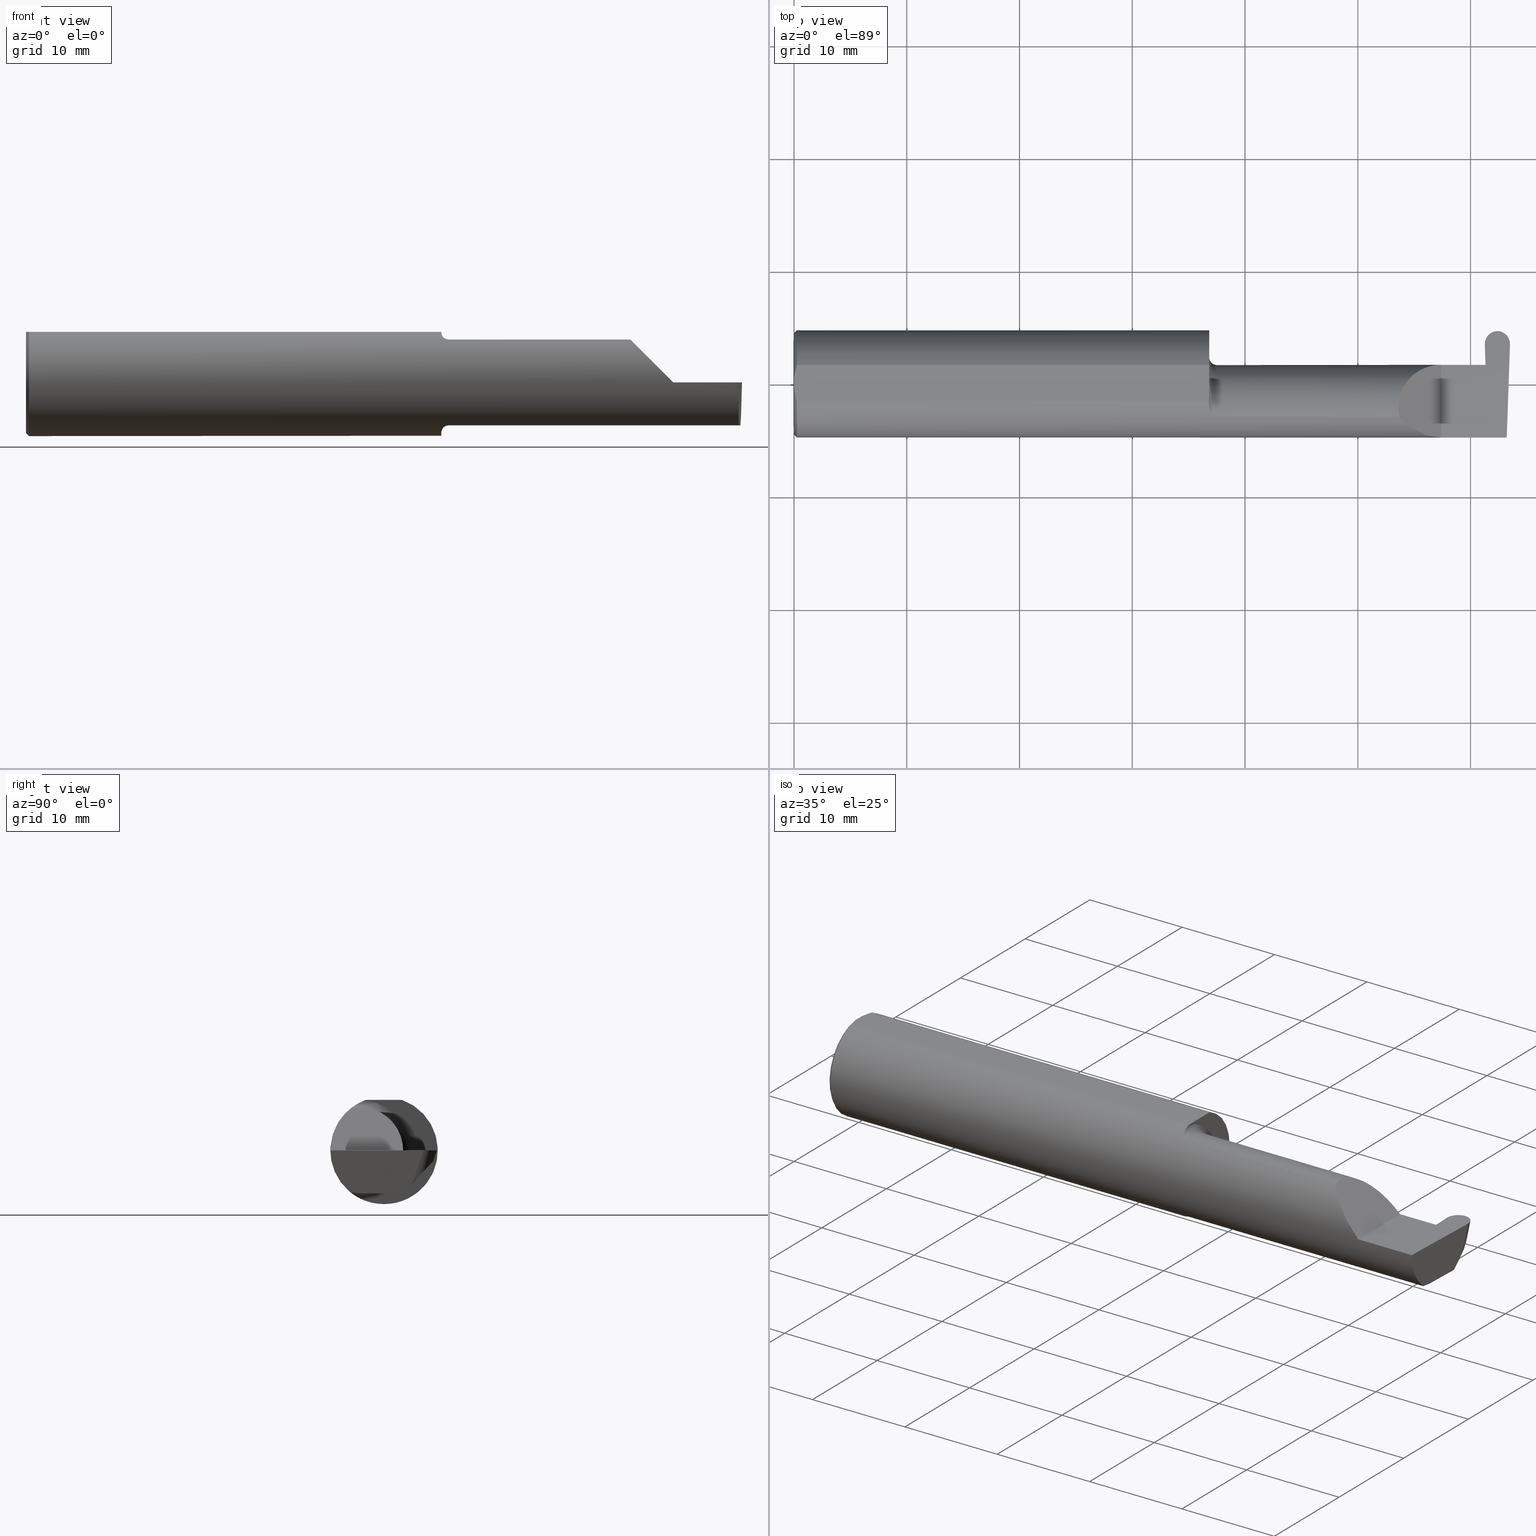
[diagram: canonical four-view strip — front | top / right | iso, engineering-drawing reading convention]
A machine part, canonical four-view strip (front | top / right | iso — engineering-drawing reading convention). The complete STEP part file that produces these views, byte-faithful:
ISO-10303-21;
HEADER;
FILE_DESCRIPTION (( 'STEP AP203' ),
    '1' );
FILE_NAME ('222182-GFR087-16.STEP',
    '2024-06-28T18:12:43',
    ( '' ),
    ( '' ),
    'SwSTEP 2.0',
    'SolidWorks 2024',
    '' );
FILE_SCHEMA (( 'CONFIG_CONTROL_DESIGN' ));
ENDSEC;

DATA;
#1 = ORIENTED_EDGE ( 'NONE', *, *, #475, .T. ) ;
#2 = LINE ( 'NONE', #388, #511 ) ;
#3 = DIRECTION ( 'NONE',  ( -0.0003154085283454300553, 0.9999999502587288980, 0.000000000000000000 ) ) ;
#4 = EDGE_LOOP ( 'NONE', ( #440, #13, #368, #558 ) ) ;
#5 = CC_DESIGN_PERSON_AND_ORGANIZATION_ASSIGNMENT ( #30, #674, ( #83 ) ) ;
#6 = DIRECTION ( 'NONE',  ( 0.02739170151060012909, -0.3089010440752013031, -0.9506996579664919178 ) ) ;
#7 = ORIENTED_EDGE ( 'NONE', *, *, #657, .T. ) ;
#8 =( CONVERSION_BASED_UNIT ( 'INCH', #218 ) LENGTH_UNIT ( ) NAMED_UNIT ( #634 ) );
#9 = CARTESIAN_POINT ( 'NONE',  ( 2.496782013450319582, 0.1018667288808076804, -0.1084363226623426962 ) ) ;
#10 = VERTEX_POINT ( 'NONE', #173 ) ;
#11 = LINE ( 'NONE', #448, #151 ) ;
#12 = CARTESIAN_POINT ( 'NONE',  ( 1.450000000000000178, 0.06655862405286426531, -0.005234924505377316559 ) ) ;
#13 = ORIENTED_EDGE ( 'NONE', *, *, #224, .T. ) ;
#14 = EDGE_CURVE ( 'NONE', #399, #669, #18, .T. ) ;
#15 = PERSON_AND_ORGANIZATION_ROLE ( 'classification_officer' ) ;
#16 = DIRECTION ( 'NONE',  ( -0.03489949670249319069, -0.9993908270190959842, 0.000000000000000000 ) ) ;
#17 = ORIENTED_EDGE ( 'NONE', *, *, #506, .T. ) ;
#18 = CIRCLE ( 'NONE', #29, 0.1873499999999999888 ) ;
#19 = AXIS2_PLACEMENT_3D ( 'NONE', #560, #571, #238 ) ;
#20 = PERSON_AND_ORGANIZATION_ROLE ( 'design_owner' ) ;
#21 = CYLINDRICAL_SURFACE ( 'NONE', #303, 0.04399999999999999745 ) ;
#22 = EDGE_LOOP ( 'NONE', ( #278, #291, #418, #212, #222 ) ) ;
#23 = DATE_AND_TIME ( #627, #593 ) ;
#24 = VERTEX_POINT ( 'NONE', #350 ) ;
#25 = ADVANCED_FACE ( 'NONE', ( #404 ), #676, .T. ) ;
#26 = DATE_AND_TIME ( #353, #163 ) ;
#27 =( BOUNDED_CURVE ( )  B_SPLINE_CURVE ( 3, ( #619, #63, #66, #394 ),
 .UNSPECIFIED., .F., .T. ) 
 B_SPLINE_CURVE_WITH_KNOTS ( ( 4, 4 ),
 ( 4.712388980384693227, 4.728033103810992621 ),
 .UNSPECIFIED. ) 
 CURVE ( )  GEOMETRIC_REPRESENTATION_ITEM ( )  RATIONAL_B_SPLINE_CURVE ( ( 1.000000000000000000, 0.9999796052208393959, 0.9999796052208393959, 1.000000000000000000 ) ) 
 REPRESENTATION_ITEM ( '' )  );
#28 = CARTESIAN_POINT ( 'NONE',  ( 1.450000000000000178, 0.1873499999999997390, 0.1763499999999999235 ) ) ;
#29 = AXIS2_PLACEMENT_3D ( 'NONE', #682, #509, #572 ) ;
#30 = PERSON_AND_ORGANIZATION ( #406, #551 ) ;
#31 = VECTOR ( 'NONE', #265, 39.37007874015747433 ) ;
#32 = CARTESIAN_POINT ( 'NONE',  ( 1.465028532764138358, -0.1137241120808235306, -0.1488947809299403791 ) ) ;
#33 = ORIENTED_EDGE ( 'NONE', *, *, #652, .T. ) ;
#34 = DIRECTION ( 'NONE',  ( 1.000000000000000000, 7.100831337523756508E-17, 0.000000000000000000 ) ) ;
#35 = CARTESIAN_POINT ( 'NONE',  ( 2.415023676549680420, 0.1018667288808076665, -0.1084363226623427101 ) ) ;
#36 = EDGE_CURVE ( 'NONE', #399, #284, #626, .T. ) ;
#37 = CARTESIAN_POINT ( 'NONE',  ( 2.455902844999999779, 0.1800649307963945456, -0.01411139200474581350 ) ) ;
#38 = ORIENTED_EDGE ( 'NONE', *, *, #447, .T. ) ;
#39 = FACE_OUTER_BOUND ( 'NONE', #541, .T. ) ;
#40 = CARTESIAN_POINT ( 'NONE',  ( 2.414454177608814867, 0.06655862405286415429, -0.005234924505383332580 ) ) ;
#41 = ORIENTED_EDGE ( 'NONE', *, *, #632, .T. ) ;
#42 = DIRECTION ( 'NONE',  ( -1.000000000000000000, -7.100831337523756508E-17, -0.000000000000000000 ) ) ;
#43 = DIRECTION ( 'NONE',  ( -0.7071067811865441310, 0.000000000000000000, -0.7071067811865510144 ) ) ;
#44 = ORIENTED_EDGE ( 'NONE', *, *, #578, .F. ) ;
#45 = CARTESIAN_POINT ( 'NONE',  ( 2.456309424548497322, 0.1846500000000000363, 0.000000000000000000 ) ) ;
#46 = B_SPLINE_CURVE_WITH_KNOTS ( 'NONE', 3,
 ( #231, #69, #283, #116 ),
 .UNSPECIFIED., .F., .F.,
 ( 4, 4 ),
 ( 0.000000000000000000, 1.000000000000000000 ),
 .UNSPECIFIED. ) ;
#47 = DIRECTION ( 'NONE',  ( 0.000000000000000000, 0.000000000000000000, -1.000000000000000000 ) ) ;
#48 = ADVANCED_FACE ( 'NONE', ( #395 ), #621, .F. ) ;
#49 = VERTEX_POINT ( 'NONE', #81 ) ;
#50 = DIRECTION ( 'NONE',  ( -1.000000000000000000, -0.000000000000000000, -0.000000000000000000 ) ) ;
#51 = CARTESIAN_POINT ( 'NONE',  ( 1.456287624083520083, -0.1021858045380145130, 0.1571187174372875028 ) ) ;
#52 = VERTEX_POINT ( 'NONE', #517 ) ;
#53 = VECTOR ( 'NONE', #317, 39.37007874015748143 ) ;
#54 = DIRECTION ( 'NONE',  ( 0.9992386149554828290, 0.03489418134010670303, 0.01745240643728358798 ) ) ;
#55 = EDGE_CURVE ( 'NONE', #284, #612, #645, .T. ) ;
#56 = CARTESIAN_POINT ( 'NONE',  ( 0.000000000000000000, 0.000000000000000000, 0.000000000000000000 ) ) ;
#57 = ORIENTED_EDGE ( 'NONE', *, *, #200, .F. ) ;
#58 = CARTESIAN_POINT ( 'NONE',  ( 0.01000000000000013205, 0.000000000000000000, -0.1873499999999999888 ) ) ;
#59 = EDGE_CURVE ( 'NONE', #579, #233, #453, .T. ) ;
#60 = PLANE ( 'NONE',  #454 ) ;
#61 = ORIENTED_EDGE ( 'NONE', *, *, #242, .F. ) ;
#62 = AXIS2_PLACEMENT_3D ( 'NONE', #346, #344, #563 ) ;
#63 = CARTESIAN_POINT ( 'NONE',  ( 2.455902844999999779, 0.1774764172755823044, -0.02207801745350519013 ) ) ;
#64 = ORIENTED_EDGE ( 'NONE', *, *, #95, .F. ) ;
#65 = CARTESIAN_POINT ( 'NONE',  ( 2.202189699843948301, -0.1873500000000000443, 0.05781030015605120170 ) ) ;
#66 = CARTESIAN_POINT ( 'NONE',  ( 2.455902844999999779, 0.1748862760345988587, -0.03004384457775134687 ) ) ;
#67 = ADVANCED_FACE ( 'NONE', ( #364 ), #420, .F. ) ;
#68 = DIRECTION ( 'NONE',  ( -7.100831337523756508E-17, 1.000000000000000000, 0.000000000000000000 ) ) ;
#69 = CARTESIAN_POINT ( 'NONE',  ( 2.405177986947488300, 0.06658908270190941336, -0.003489949670254619170 ) ) ;
#70 = AXIS2_PLACEMENT_3D ( 'NONE', #615, #54, #438 ) ;
#71 = LINE ( 'NONE', #345, #124 ) ;
#72 = VERTEX_POINT ( 'NONE', #90 ) ;
#73 = EDGE_CURVE ( 'NONE', #274, #264, #305, .T. ) ;
#74 = MECHANICAL_CONTEXT ( 'NONE', #185, 'mechanical' ) ;
#75 = DIRECTION ( 'NONE',  ( 0.000000000000000000, 1.000000000000000000, 0.000000000000000000 ) ) ;
#76 = VERTEX_POINT ( 'NONE', #257 ) ;
#77 = CONICAL_SURFACE ( 'NONE', #214, 0.1773499999999999521, 0.7853981633974431720 ) ;
#78 = APPROVAL_DATE_TIME ( #133, #270 ) ;
#79 = CARTESIAN_POINT ( 'NONE',  ( 0.005151108632379722968, -0.04888864921576022843, 0.1763499999999999235 ) ) ;
#80 = ADVANCED_FACE ( 'NONE', ( #465 ), #355, .F. ) ;
#81 = CARTESIAN_POINT ( 'NONE',  ( 1.450000000000000178, -0.06851976604679066440, 0.1743704796142198643 ) ) ;
#82 = PERSON_AND_ORGANIZATION ( #406, #551 ) ;
#83 = PRODUCT_DEFINITION_FORMATION_WITH_SPECIFIED_SOURCE ( 'ANY', '', #658, .NOT_KNOWN. ) ;
#84 = VERTEX_POINT ( 'NONE', #480 ) ;
#85 = APPROVAL_DATE_TIME ( #26, #700 ) ;
#86 = CARTESIAN_POINT ( 'NONE',  ( 2.417090374579074830, 0.002105059811797808066, -0.1500000000000000500 ) ) ;
#87 = EDGE_LOOP ( 'NONE', ( #502, #206, #568, #114 ) ) ;
#88 = VECTOR ( 'NONE', #229, 39.37007874015748854 ) ;
#89 = VECTOR ( 'NONE', #369, 39.37007874015748143 ) ;
#90 = CARTESIAN_POINT ( 'NONE',  ( 0.000000000000000000, -0.01880691362238934641, 0.1763499999999999235 ) ) ;
#91 = ORIENTED_EDGE ( 'NONE', *, *, #452, .T. ) ;
#92 = DIRECTION ( 'NONE',  ( -1.000000000000000000, -0.000000000000000000, -0.000000000000000000 ) ) ;
#93 = DIRECTION ( 'NONE',  ( -0.9992386149554828290, 0.03489418134010589118, 0.01745240643728358451 ) ) ;
#94 = AXIS2_PLACEMENT_3D ( 'NONE', #559, #500, #377 ) ;
#95 = EDGE_CURVE ( 'NONE', #10, #481, #312, .T. ) ;
#96 = ORIENTED_EDGE ( 'NONE', *, *, #506, .F. ) ;
#97 = CYLINDRICAL_SURFACE ( 'NONE', #426, 0.1500000000000000500 ) ;
#98 =( BOUNDED_CURVE ( )  B_SPLINE_CURVE ( 3, ( #697, #149, #485, #479 ),
 .UNSPECIFIED., .F., .T. ) 
 B_SPLINE_CURVE_WITH_KNOTS ( ( 4, 4 ),
 ( 1.556955361882043087, 3.139904393074466338 ),
 .UNSPECIFIED. ) 
 CURVE ( )  GEOMETRIC_REPRESENTATION_ITEM ( )  RATIONAL_B_SPLINE_CURVE ( ( 1.000000000000000000, 0.8018647492693374845, 0.8018647492693374845, 1.000000000000000000 ) ) 
 REPRESENTATION_ITEM ( '' )  );
#99 = CARTESIAN_POINT ( 'NONE',  ( 2.417117327835069940, -0.08334999999999997966, -0.1500000000000000500 ) ) ;
#100 = VERTEX_POINT ( 'NONE', #309 ) ;
#101 = CARTESIAN_POINT ( 'NONE',  ( 2.482665624698748186, 0.1846499999999999808, 5.261345637967953601E-18 ) ) ;
#102 = CARTESIAN_POINT ( 'NONE',  ( 1.450000000000000178, -0.06851976604679066440, 0.1743704796142198643 ) ) ;
#103 = EDGE_LOOP ( 'NONE', ( #281, #330, #574, #376, #427, #358 ) ) ;
#104 = LINE ( 'NONE', #321, #359 ) ;
#105 = CARTESIAN_POINT ( 'NONE',  ( 2.487566561880238947, -0.1873499999999999610, -0.05781030015605118089 ) ) ;
#106 = ORIENTED_EDGE ( 'NONE', *, *, #684, .F. ) ;
#107 = LOCAL_TIME ( 11, 12, 43.00000000000000000, #463 ) ;
#108 = LINE ( 'NONE', #580, #356 ) ;
#109 = CARTESIAN_POINT ( 'NONE',  ( 2.499906297085412898, 0.1370998259008695819, 0.000000000000000000 ) ) ;
#110 = ORIENTED_EDGE ( 'NONE', *, *, #308, .F. ) ;
#111 = CIRCLE ( 'NONE', #393, 0.1873499999999999888 ) ;
#112 = EDGE_CURVE ( 'NONE', #244, #72, #533, .T. ) ;
#113 = CARTESIAN_POINT ( 'NONE',  ( 1.451829077486400443, -0.08839624499054650475, 0.1652742498708037744 ) ) ;
#114 = ORIENTED_EDGE ( 'NONE', *, *, #691, .T. ) ;
#115 = EDGE_CURVE ( 'NONE', #306, #264, #221, .T. ) ;
#116 = CARTESIAN_POINT ( 'NONE',  ( 2.405238904245578624, 0.06664999999999991764, 0.000000000000000000 ) ) ;
#117 = FACE_OUTER_BOUND ( 'NONE', #642, .T. ) ;
#118 = ORIENTED_EDGE ( 'NONE', *, *, #302, .F. ) ;
#119 = LINE ( 'NONE', #381, #203 ) ;
#120 = CARTESIAN_POINT ( 'NONE',  ( 2.408028112623431749, 0.2354043271331361931, 0.02510127558998736727 ) ) ;
#121 = VERTEX_POINT ( 'NONE', #143 ) ;
#122 = VECTOR ( 'NONE', #140, 39.37007874015748854 ) ;
#123 = PLANE ( 'NONE',  #690 ) ;
#124 = VECTOR ( 'NONE', #134, 39.37007874015748854 ) ;
#125 = ORIENTED_EDGE ( 'NONE', *, *, #594, .T. ) ;
#126 = DIRECTION ( 'NONE',  ( -0.01299916717458333461, 0.7070470357949164564, 0.7070470357949245610 ) ) ;
#127 = EDGE_CURVE ( 'NONE', #72, #24, #692, .T. ) ;
#128 = PLANE ( 'NONE',  #413 ) ;
#129 = ORIENTED_EDGE ( 'NONE', *, *, #569, .F. ) ;
#130 = CALENDAR_DATE ( 2024, 28, 6 ) ;
#131 = CARTESIAN_POINT ( 'NONE',  ( 2.733184360054361939, -0.08334999999999997966, -0.1500000000000000500 ) ) ;
#132 = VERTEX_POINT ( 'NONE', #685 ) ;
#133 = DATE_AND_TIME ( #400, #434 ) ;
#134 = DIRECTION ( 'NONE',  ( -0.02739170151060013256, 0.3089010440752013587, 0.9506996579664918068 ) ) ;
#135 = VERTEX_POINT ( 'NONE', #630 ) ;
#136 = CC_DESIGN_PERSON_AND_ORGANIZATION_ASSIGNMENT ( #625, #451, ( #83 ) ) ;
#137 = DATE_TIME_ROLE ( 'classification_date' ) ;
#138 = ORIENTED_EDGE ( 'NONE', *, *, #452, .F. ) ;
#139 = COORDINATED_UNIVERSAL_TIME_OFFSET ( 8, 0, .BEHIND. ) ;
#140 = DIRECTION ( 'NONE',  ( 0.02739170151059986541, 0.3089010440752013031, 0.9506996579664918068 ) ) ;
#141 = ORIENTED_EDGE ( 'NONE', *, *, #423, .F. ) ;
#142 = EDGE_CURVE ( 'NONE', #436, #260, #301, .T. ) ;
#143 = CARTESIAN_POINT ( 'NONE',  ( 2.494604638945828956, 0.06030305154315079852, -0.1500000000000000500 ) ) ;
#144 = ORIENTED_EDGE ( 'NONE', *, *, #469, .F. ) ;
#145 = VECTOR ( 'NONE', #126, 39.37007874015748143 ) ;
#146 = CARTESIAN_POINT ( 'NONE',  ( 0.000000000000000000, 0.000000000000000000, 0.000000000000000000 ) ) ;
#147 = EDGE_CURVE ( 'NONE', #549, #546, #587, .T. ) ;
#148 = CARTESIAN_POINT ( 'NONE',  ( 0.01000000000000013205, 0.06325108694718235836, 0.1763499999999999235 ) ) ;
#149 = CARTESIAN_POINT ( 'NONE',  ( 2.412901126908979510, 0.1423838600483241235, -0.06791919149482579521 ) ) ;
#150 = DIRECTION ( 'NONE',  ( -7.100831337523756508E-17, 1.000000000000000000, 0.000000000000000000 ) ) ;
#151 = VECTOR ( 'NONE', #174, 39.37007874015748143 ) ;
#152 = ORIENTED_EDGE ( 'NONE', *, *, #691, .F. ) ;
#153 = DIRECTION ( 'NONE',  ( -1.000000000000000000, -0.000000000000000000, -0.000000000000000000 ) ) ;
#154 = CARTESIAN_POINT ( 'NONE',  ( 1.458439486659307338, -0.1064616213911158266, -0.1542305641651500470 ) ) ;
#155 = ORIENTED_EDGE ( 'NONE', *, *, #59, .F. ) ;
#156 = AXIS2_PLACEMENT_3D ( 'NONE', #146, #153, #365 ) ;
#157 = CARTESIAN_POINT ( 'NONE',  ( 2.411832552795360574, 0.1390138764844879860, 0.000000000000000000 ) ) ;
#158 = CARTESIAN_POINT ( 'NONE',  ( 2.414359555045604289, 0.06664999999999991764, 0.000000000000000000 ) ) ;
#159 = ORIENTED_EDGE ( 'NONE', *, *, #567, .T. ) ;
#160 = CARTESIAN_POINT ( 'NONE',  ( 0.000000000000000000, 0.000000000000000000, -0.1773499999999999521 ) ) ;
#161 = CARTESIAN_POINT ( 'NONE',  ( 1.450000000000000178, -0.06325108694718287183, 0.1763499999999999235 ) ) ;
#162 = ORIENTED_EDGE ( 'NONE', *, *, #147, .F. ) ;
#163 = LOCAL_TIME ( 11, 12, 43.00000000000000000, #139 ) ;
#164 = APPROVAL ( #510, 'UNSPECIFIED' ) ;
#165 = CARTESIAN_POINT ( 'NONE',  ( 2.414359555045604289, 0.06664999999999991764, -9.645561665750322649E-21 ) ) ;
#166 = ORIENTED_EDGE ( 'NONE', *, *, #484, .T. ) ;
#167 = CARTESIAN_POINT ( 'NONE',  ( 2.414359555045604289, 0.06664999999999991764, 0.000000000000000000 ) ) ;
#168 = EDGE_LOOP ( 'NONE', ( #334, #635, #387, #608 ) ) ;
#169 = CARTESIAN_POINT ( 'NONE',  ( 1.450000000000000178, 0.000000000000000000, 0.000000000000000000 ) ) ;
#170 = EDGE_LOOP ( 'NONE', ( #496, #7, #247, #152, #64, #491, #129, #646, #166 ) ) ;
#171 = DIRECTION ( 'NONE',  ( 1.000000000000000000, 7.100831337523756508E-17, 0.000000000000000000 ) ) ;
#172 = CARTESIAN_POINT ( 'NONE',  ( 2.500000000000000000, -0.2500000000000000555, 0.000000000000000000 ) ) ;
#173 = CARTESIAN_POINT ( 'NONE',  ( 2.260000000000000231, 0.06665000000000002867, 1.285879139104721225E-16 ) ) ;
#174 = DIRECTION ( 'NONE',  ( 1.000000000000000000, -0.000000000000000000, -0.000000000000000000 ) ) ;
#175 = EDGE_CURVE ( 'NONE', #233, #76, #389, .T. ) ;
#176 = CIRCLE ( 'NONE', #613, 0.1873499999999999888 ) ;
#177 = CARTESIAN_POINT ( 'NONE',  ( 2.113883229301068312, -0.1172600179964003175, 0.1461167706989304760 ) ) ;
#178 = VECTOR ( 'NONE', #651, 39.37007874015748143 ) ;
#179 = DIRECTION ( 'NONE',  ( 1.000000000000000000, 0.000000000000000000, 0.000000000000000000 ) ) ;
#180 = AXIS2_PLACEMENT_3D ( 'NONE', #169, #648, #698 ) ;
#181 = COORDINATED_UNIVERSAL_TIME_OFFSET ( 8, 0, .BEHIND. ) ;
#182 = CARTESIAN_POINT ( 'NONE',  ( 2.417363697998881733, -2.354248658836814556, -0.1239957194858760936 ) ) ;
#183 = ORIENTED_EDGE ( 'NONE', *, *, #14, .T. ) ;
#184 = APPROVAL_STATUS ( 'not_yet_approved' ) ;
#185 = APPLICATION_CONTEXT ( 'configuration controlled 3d designs of mechanical parts and assemblies' ) ;
#186 = LOCAL_TIME ( 11, 12, 43.00000000000000000, #245 ) ;
#187 = DIRECTION ( 'NONE',  ( 0.000000000000000000, 0.000000000000000000, -1.000000000000000000 ) ) ;
#188 = ORIENTED_EDGE ( 'NONE', *, *, #112, .T. ) ;
#189 = DIRECTION ( 'NONE',  ( 0.000000000000000000, 0.000000000000000000, 1.000000000000000000 ) ) ;
#190 = AXIS2_PLACEMENT_3D ( 'NONE', #477, #407, #253 ) ;
#191 = DIRECTION ( 'NONE',  ( 1.000000000000000000, 7.100831337523756508E-17, 0.000000000000000000 ) ) ;
#192 =( BOUNDED_CURVE ( )  B_SPLINE_CURVE ( 3, ( #609, #550, #670, #285 ),
 .UNSPECIFIED., .F., .T. ) 
 B_SPLINE_CURVE_WITH_KNOTS ( ( 4, 4 ),
 ( 3.057488531086357764, 4.656081685705083295 ),
 .UNSPECIFIED. ) 
 CURVE ( )  GEOMETRIC_REPRESENTATION_ITEM ( )  RATIONAL_B_SPLINE_CURVE ( ( 1.000000000000000000, 0.7981407609938078185, 0.7981407609938078185, 1.000000000000000000 ) ) 
 REPRESENTATION_ITEM ( '' )  );
#193 = DIRECTION ( 'NONE',  ( -0.02739170151059987582, -0.3089010440752013587, -0.9506996579664918068 ) ) ;
#194 = VERTEX_POINT ( 'NONE', #35 ) ;
#195 = EDGE_CURVE ( 'NONE', #24, #591, #249, .T. ) ;
#196 =( BOUNDED_CURVE ( )  B_SPLINE_CURVE ( 3, ( #419, #215, #644, #262 ),
 .UNSPECIFIED., .F., .T. ) 
 B_SPLINE_CURVE_WITH_KNOTS ( ( 4, 4 ),
 ( 6.055147272130144920, 7.853981633974482790 ),
 .UNSPECIFIED. ) 
 CURVE ( )  GEOMETRIC_REPRESENTATION_ITEM ( )  RATIONAL_B_SPLINE_CURVE ( ( 1.000000000000000000, 0.7480442670255273985, 0.7480442670255273985, 1.000000000000000000 ) ) 
 REPRESENTATION_ITEM ( '' )  );
#197 =( GEOMETRIC_REPRESENTATION_CONTEXT ( 3 ) GLOBAL_UNCERTAINTY_ASSIGNED_CONTEXT ( ( #520 ) ) GLOBAL_UNIT_ASSIGNED_CONTEXT ( ( #8, #597, #433 ) ) REPRESENTATION_CONTEXT ( 'NONE', 'WORKASPACE' ) );
#198 = DIRECTION ( 'NONE',  ( -0.01806954526206909148, 0.01744955702544859211, 0.9996844524616943506 ) ) ;
#199 = DIRECTION ( 'NONE',  ( -1.000000000000000000, -7.100831337523756508E-17, -0.000000000000000000 ) ) ;
#200 = EDGE_CURVE ( 'NONE', #436, #121, #687, .T. ) ;
#201 = CARTESIAN_POINT ( 'NONE',  ( 0.000000000000000000, 0.01880691362238934988, 0.1763499999999999235 ) ) ;
#202 = AXIS2_PLACEMENT_3D ( 'NONE', #581, #93, #417 ) ;
#203 = VECTOR ( 'NONE', #604, 39.37007874015748143 ) ;
#204 = FACE_OUTER_BOUND ( 'NONE', #103, .T. ) ;
#205 = CARTESIAN_POINT ( 'NONE',  ( 1.474999999999999867, -0.1172600179964005951, -0.1461167706989303927 ) ) ;
#206 = ORIENTED_EDGE ( 'NONE', *, *, #415, .T. ) ;
#207 = CARTESIAN_POINT ( 'NONE',  ( 1.472174967710399462, -0.1172600179964005812, -0.1461167706989304205 ) ) ;
#208 = ORIENTED_EDGE ( 'NONE', *, *, #524, .F. ) ;
#209 = LINE ( 'NONE', #422, #602 ) ;
#210 = MANIFOLD_SOLID_BREP ( 'Radii', #702 ) ;
#211 = DIRECTION ( 'NONE',  ( 1.000000000000000000, 0.000000000000000000, 0.000000000000000000 ) ) ;
#212 = ORIENTED_EDGE ( 'NONE', *, *, #73, .T. ) ;
#213 = VECTOR ( 'NONE', #3, 39.37007874015748143 ) ;
#214 = AXIS2_PLACEMENT_3D ( 'NONE', #552, #599, #487 ) ;
#215 = CARTESIAN_POINT ( 'NONE',  ( 2.090221225029926355, -0.01530148607434139371, 0.1697787749700724880 ) ) ;
#216 = DIRECTION ( 'NONE',  ( 0.000000000000000000, -0.9998476951563912696, 0.01745240643728358451 ) ) ;
#217 = ORIENTED_EDGE ( 'NONE', *, *, #200, .T. ) ;
#218 = LENGTH_MEASURE_WITH_UNIT ( LENGTH_MEASURE( 0.02539999999999999897 ), #507 );
#219 = CC_DESIGN_PERSON_AND_ORGANIZATION_ASSIGNMENT ( #348, #20, ( #658 ) ) ;
#220 = CARTESIAN_POINT ( 'NONE',  ( 1.469481469043492083, -0.1163560528186164955, 0.1468472430636323933 ) ) ;
#221 =( BOUNDED_CURVE ( )  B_SPLINE_CURVE ( 3, ( #99, #86, #683, #40 ),
 .UNSPECIFIED., .F., .T. ) 
 B_SPLINE_CURVE_WITH_KNOTS ( ( 4, 4 ),
 ( 3.159045946109732217, 4.694935687864687957 ),
 .UNSPECIFIED. ) 
 CURVE ( )  GEOMETRIC_REPRESENTATION_ITEM ( )  RATIONAL_B_SPLINE_CURVE ( ( 1.000000000000000000, 0.8128932002257799327, 0.8128932002257799327, 1.000000000000000000 ) ) 
 REPRESENTATION_ITEM ( '' )  );
#222 = ORIENTED_EDGE ( 'NONE', *, *, #254, .T. ) ;
#223 = CC_DESIGN_APPROVAL ( #270, ( #246 ) ) ;
#224 = EDGE_CURVE ( 'NONE', #306, #100, #378, .T. ) ;
#225 = CARTESIAN_POINT ( 'NONE',  ( 2.455902844999999779, 0.1722946655495198598, -0.03800838599362971193 ) ) ;
#226 = EDGE_CURVE ( 'NONE', #84, #310, #561, .T. ) ;
#227 = CARTESIAN_POINT ( 'NONE',  ( 1.452945243422983035, -0.09312071749437422774, 0.1626553472577906556 ) ) ;
#228 = ORIENTED_EDGE ( 'NONE', *, *, #142, .F. ) ;
#229 = DIRECTION ( 'NONE',  ( -0.03701744261649742712, -0.7066221440565398915, -0.7066221440565478851 ) ) ;
#230 = ORIENTED_EDGE ( 'NONE', *, *, #73, .F. ) ;
#231 = CARTESIAN_POINT ( 'NONE',  ( 2.405147528298442694, 0.06655862405286416816, -0.005234924505381928321 ) ) ;
#232 = CARTESIAN_POINT ( 'NONE',  ( 2.499906297085412898, 0.1370998259008695819, 0.000000000000000000 ) ) ;
#233 = VERTEX_POINT ( 'NONE', #375 ) ;
#234 = LINE ( 'NONE', #327, #545 ) ;
#235 = FACE_OUTER_BOUND ( 'NONE', #4, .T. ) ;
#236 = EDGE_LOOP ( 'NONE', ( #555, #553, #41 ) ) ;
#237 = APPROVAL_ROLE ( '' ) ;
#238 = DIRECTION ( 'NONE',  ( 0.000000000000000000, 0.000000000000000000, 1.000000000000000000 ) ) ;
#239 = CIRCLE ( 'NONE', #476, 0.1749999999999999889 ) ;
#240 = VERTEX_POINT ( 'NONE', #158 ) ;
#241 = APPROVAL_DATE_TIME ( #23, #164 ) ;
#242 = EDGE_CURVE ( 'NONE', #669, #591, #176, .T. ) ;
#243 = LINE ( 'NONE', #120, #380 ) ;
#244 = VERTEX_POINT ( 'NONE', #540 ) ;
#245 = COORDINATED_UNIVERSAL_TIME_OFFSET ( 8, 0, .BEHIND. ) ;
#246 = SECURITY_CLASSIFICATION ( '', '', #248 ) ;
#247 = ORIENTED_EDGE ( 'NONE', *, *, #600, .F. ) ;
#248 = SECURITY_CLASSIFICATION_LEVEL ( 'unclassified' ) ;
#249 = B_SPLINE_CURVE_WITH_KNOTS ( 'NONE', 3,
 ( #201, #414, #639, #148 ),
 .UNSPECIFIED., .F., .F.,
 ( 4, 4 ),
 ( 0.01188664626022242071, 0.01304646959483746725 ),
 .UNSPECIFIED. ) ;
#250 = AXIS2_PLACEMENT_3D ( 'NONE', #661, #43, #383 ) ;
#251 = CARTESIAN_POINT ( 'NONE',  ( 2.499922542640338197, 0.1372830298860648612, 0.0005638438891804136138 ) ) ;
#252 = ADVANCED_FACE ( 'NONE', ( #495 ), #261, .T. ) ;
#253 = DIRECTION ( 'NONE',  ( 0.000000000000000000, 0.000000000000000000, -1.000000000000000000 ) ) ;
#254 = EDGE_CURVE ( 'NONE', #264, #240, #319, .T. ) ;
#255 = EDGE_LOOP ( 'NONE', ( #228, #617, #141, #162, #513 ) ) ;
#256 = DIRECTION ( 'NONE',  ( 0.9998367324388628408, 0.0003153570480505056822, 0.01806679318280295793 ) ) ;
#257 = CARTESIAN_POINT ( 'NONE',  ( 1.450000000000000178, -0.06851976604679066440, -0.1743704796142198643 ) ) ;
#258 = CARTESIAN_POINT ( 'NONE',  ( 2.456309424548497322, 0.1846500000000000363, 0.000000000000000000 ) ) ;
#259 = CARTESIAN_POINT ( 'NONE',  ( 1.474999999999999867, -0.08335000000000006293, 0.000000000000000000 ) ) ;
#260 = VERTEX_POINT ( 'NONE', #109 ) ;
#261 = CONICAL_SURFACE ( 'NONE', #662, 0.1773499999999999521, 0.7853981633974431720 ) ;
#262 = CARTESIAN_POINT ( 'NONE',  ( 2.260000000000000231, 0.06665000000000002867, 1.285879139104721225E-16 ) ) ;
#263 = CARTESIAN_POINT ( 'NONE',  ( 1.469511795768554840, -0.1163687266324234387, -0.1468371510166788796 ) ) ;
#264 = VERTEX_POINT ( 'NONE', #605 ) ;
#265 = DIRECTION ( 'NONE',  ( 0.02739170151060012562, -0.3089010440752013031, -0.9506996579664920288 ) ) ;
#266 = DIRECTION ( 'NONE',  ( 0.000000000000000000, 0.9510565162951533091, -0.3090169943749481729 ) ) ;
#267 = DIRECTION ( 'NONE',  ( 0.000000000000000000, 0.000000000000000000, 1.000000000000000000 ) ) ;
#268 = FACE_OUTER_BOUND ( 'NONE', #421, .T. ) ;
#269 = ORIENTED_EDGE ( 'NONE', *, *, #679, .T. ) ;
#270 = APPROVAL ( #184, 'UNSPECIFIED' ) ;
#271 = VECTOR ( 'NONE', #435, 39.37007874015748143 ) ;
#272 = CARTESIAN_POINT ( 'NONE',  ( 2.488471823259916782, -0.1172600179964005812, -0.1461167706989303927 ) ) ;
#273 = CARTESIAN_POINT ( 'NONE',  ( 1.458475602106621638, -0.1064978748893405103, 0.1542035505680384444 ) ) ;
#274 = VERTEX_POINT ( 'NONE', #371 ) ;
#275 = ADVANCED_FACE ( 'NONE', ( #268 ), #77, .T. ) ;
#276 = CARTESIAN_POINT ( 'NONE',  ( 2.150065971957464850, -0.1623470442677540371, 0.1099340280425340488 ) ) ;
#277 = CARTESIAN_POINT ( 'NONE',  ( 2.488576259503493926, -0.1873499999999999888, 0.000000000000000000 ) ) ;
#278 = ORIENTED_EDGE ( 'NONE', *, *, #600, .T. ) ;
#279 = PLANE ( 'NONE',  #94 ) ;
#280 = CARTESIAN_POINT ( 'NONE',  ( 2.487529306701961485, -0.1623470442677540093, -0.1099340280425339378 ) ) ;
#281 = ORIENTED_EDGE ( 'NONE', *, *, #36, .T. ) ;
#282 = ADVANCED_FACE ( 'NONE', ( #443 ), #60, .F. ) ;
#283 = CARTESIAN_POINT ( 'NONE',  ( 2.405208445596533462, 0.06661954135095467244, -0.001744974835127309368 ) ) ;
#284 = VERTEX_POINT ( 'NONE', #161 ) ;
#285 = CARTESIAN_POINT ( 'NONE',  ( 2.411899392914586659, 0.1370998259008695541, 0.000000000000000000 ) ) ;
#286 = DIRECTION ( 'NONE',  ( 1.000000000000000000, -0.000000000000000000, -0.000000000000000000 ) ) ;
#287 = CARTESIAN_POINT ( 'NONE',  ( 0.000000000000000000, -0.06325108694718235836, 0.1763499999999999235 ) ) ;
#288 = CC_DESIGN_APPROVAL ( #164, ( #412 ) ) ;
#289 = CARTESIAN_POINT ( 'NONE',  ( 2.405147528298442694, 0.06655862405286416816, -0.005234924505381928321 ) ) ;
#290 = FACE_OUTER_BOUND ( 'NONE', #402, .T. ) ;
#291 = ORIENTED_EDGE ( 'NONE', *, *, #524, .T. ) ;
#292 = PERSON_AND_ORGANIZATION ( #406, #551 ) ;
#293 = VECTOR ( 'NONE', #633, 39.37007874015748143 ) ;
#294 = LINE ( 'NONE', #512, #638 ) ;
#295 = AXIS2_PLACEMENT_3D ( 'NONE', #471, #680, #187 ) ;
#296 = ORIENTED_EDGE ( 'NONE', *, *, #112, .F. ) ;
#297 = SHAPE_DEFINITION_REPRESENTATION ( #497, #431 ) ;
#298 = CARTESIAN_POINT ( 'NONE',  ( 0.001595548104417008695, -0.03385300050298640367, 0.1763499999999999235 ) ) ;
#299 = ORIENTED_EDGE ( 'NONE', *, *, #569, .T. ) ;
#300 = PERSON_AND_ORGANIZATION_ROLE ( 'creator' ) ;
#301 = LINE ( 'NONE', #251, #122 ) ;
#302 = EDGE_CURVE ( 'NONE', #76, #612, #614, .T. ) ;
#303 = AXIS2_PLACEMENT_3D ( 'NONE', #686, #668, #675 ) ;
#304 = CARTESIAN_POINT ( 'NONE',  ( 2.454465662695322070, 0.1638575727295927265, -0.06399251110804611564 ) ) ;
#305 = LINE ( 'NONE', #361, #425 ) ;
#306 = VERTEX_POINT ( 'NONE', #322 ) ;
#307 = LINE ( 'NONE', #529, #145 ) ;
#308 = EDGE_CURVE ( 'NONE', #49, #579, #649, .T. ) ;
#309 = CARTESIAN_POINT ( 'NONE',  ( 2.417072018435237002, 0.06030305154315081240, -0.1500000000000000500 ) ) ;
#310 = VERTEX_POINT ( 'NONE', #537 ) ;
#311 = DIRECTION ( 'NONE',  ( -1.000000000000000000, -0.000000000000000000, -0.000000000000000000 ) ) ;
#312 = LINE ( 'NONE', #534, #293 ) ;
#313 = ORIENTED_EDGE ( 'NONE', *, *, #226, .T. ) ;
#314 = CARTESIAN_POINT ( 'NONE',  ( 0.000000000000000000, 0.06325108694718235836, 0.1763499999999999235 ) ) ;
#315 = CARTESIAN_POINT ( 'NONE',  ( 1.449999999999999734, -0.07367581953296700736, 0.1723443821957854338 ) ) ;
#316 = EDGE_LOOP ( 'NONE', ( #535, #505, #188 ) ) ;
#317 = DIRECTION ( 'NONE',  ( 0.7071067811865511255, 0.000000000000000000, -0.7071067811865439090 ) ) ;
#318 = CC_DESIGN_DATE_AND_TIME_ASSIGNMENT ( #678, #137, ( #246 ) ) ;
#319 = LINE ( 'NONE', #165, #271 ) ;
#320 = ORIENTED_EDGE ( 'NONE', *, *, #620, .F. ) ;
#321 = CARTESIAN_POINT ( 'NONE',  ( -0.001039370078739994957, 0.1846500000000000363, 0.000000000000000000 ) ) ;
#322 = CARTESIAN_POINT ( 'NONE',  ( 2.417117327835069940, -0.08334999999999997966, -0.1500000000000000500 ) ) ;
#323 = ADVANCED_FACE ( 'NONE', ( #439 ), #664, .F. ) ;
#324 = ORIENTED_EDGE ( 'NONE', *, *, #36, .F. ) ;
#325 = DIRECTION ( 'NONE',  ( 1.000000000000000000, 0.000000000000000000, 0.000000000000000000 ) ) ;
#326 = ORIENTED_EDGE ( 'NONE', *, *, #629, .T. ) ;
#327 = CARTESIAN_POINT ( 'NONE',  ( 2.260000000000000231, -0.2500000000000000555, 2.939152317953647352E-17 ) ) ;
#328 = CYLINDRICAL_SURFACE ( 'NONE', #673, 0.04399999999999999051 ) ;
#329 = ADVANCED_FACE ( 'NONE', ( #117 ), #328, .T. ) ;
#330 = ORIENTED_EDGE ( 'NONE', *, *, #55, .T. ) ;
#331 = CARTESIAN_POINT ( 'NONE',  ( 2.455902844999999779, 0.1722946655495198598, -0.03800838599362971193 ) ) ;
#332 = ADVANCED_FACE ( 'NONE', ( #424 ), #557, .F. ) ;
#333 = CARTESIAN_POINT ( 'NONE',  ( 1.450000000000000178, 0.000000000000000000, 0.000000000000000000 ) ) ;
#334 = ORIENTED_EDGE ( 'NONE', *, *, #308, .T. ) ;
#335 = CARTESIAN_POINT ( 'NONE',  ( 2.496782013450319582, 0.1018667288808076804, -0.1084363226623426962 ) ) ;
#336 = VECTOR ( 'NONE', #150, 39.37007874015748143 ) ;
#337 = VECTOR ( 'NONE', #50, 39.37007874015748143 ) ;
#338 = DIRECTION ( 'NONE',  ( -1.224646799147353947E-16, 0.000000000000000000, -1.000000000000000000 ) ) ;
#339 = ORIENTED_EDGE ( 'NONE', *, *, #142, .T. ) ;
#340 = FACE_OUTER_BOUND ( 'NONE', #22, .T. ) ;
#341 =( BOUNDED_CURVE ( )  B_SPLINE_CURVE ( 3, ( #232, #445, #101, #45 ),
 .UNSPECIFIED., .F., .T. ) 
 B_SPLINE_CURVE_WITH_KNOTS ( ( 4, 4 ),
 ( 1.627103621474502049, 3.225696776093220475 ),
 .UNSPECIFIED. ) 
 CURVE ( )  GEOMETRIC_REPRESENTATION_ITEM ( )  RATIONAL_B_SPLINE_CURVE ( ( 1.000000000000000000, 0.7981407609938095948, 0.7981407609938095948, 1.000000000000000000 ) ) 
 REPRESENTATION_ITEM ( '' )  );
#342 = CARTESIAN_POINT ( 'NONE',  ( 2.499973137204639428, 0.1390138764844880415, 0.000000000000000000 ) ) ;
#343 = ADVANCED_FACE ( 'NONE', ( #508 ), #123, .F. ) ;
#344 = DIRECTION ( 'NONE',  ( 0.000000000000000000, -0.9510565162951534202, 0.3090169943749482284 ) ) ;
#345 = CARTESIAN_POINT ( 'NONE',  ( 2.453653113715916767, 0.2054355468668520590, 0.06397133540329498491 ) ) ;
#346 = CARTESIAN_POINT ( 'NONE',  ( -0.001039370078739994957, 0.1846500000000000363, 0.000000000000000000 ) ) ;
#347 = ADVANCED_FACE ( 'NONE', ( #290 ), #501, .T. ) ;
#348 = PERSON_AND_ORGANIZATION ( #406, #551 ) ;
#349 = CARTESIAN_POINT ( 'NONE',  ( 0.01000000000000013205, -0.06325108694718235836, 0.1763499999999999235 ) ) ;
#350 = CARTESIAN_POINT ( 'NONE',  ( 0.000000000000000000, 0.01880691362238934988, 0.1763499999999999235 ) ) ;
#351 = CALENDAR_DATE ( 2024, 28, 6 ) ;
#352 = ORIENTED_EDGE ( 'NONE', *, *, #514, .F. ) ;
#353 = CALENDAR_DATE ( 2024, 28, 6 ) ;
#354 = DIRECTION ( 'NONE',  ( -1.000000000000000000, -7.100831337523756508E-17, -0.000000000000000000 ) ) ;
#355 = TOROIDAL_SURFACE ( 'NONE', #601, 0.1749999999999999889, 0.02499999999999992853 ) ;
#356 = VECTOR ( 'NONE', #92, 39.37007874015748143 ) ;
#357 = CARTESIAN_POINT ( 'NONE',  ( 1.450358271039144054, -0.07873626113568082951, -0.1700887912276896063 ) ) ;
#358 = ORIENTED_EDGE ( 'NONE', *, *, #397, .F. ) ;
#359 = VECTOR ( 'NONE', #640, 39.37007874015748143 ) ;
#360 = CARTESIAN_POINT ( 'NONE',  ( 1.450000000000000178, -0.08335000000000004905, 0.000000000000000000 ) ) ;
#361 = CARTESIAN_POINT ( 'NONE',  ( 2.414359555045604289, 0.06664999999999991764, -9.645561665750322649E-21 ) ) ;
#362 = ORIENTED_EDGE ( 'NONE', *, *, #684, .T. ) ;
#363 = CARTESIAN_POINT ( 'NONE',  ( 1.450000000000000178, -0.08335000000000004905, 0.000000000000000000 ) ) ;
#364 = FACE_OUTER_BOUND ( 'NONE', #531, .T. ) ;
#365 = DIRECTION ( 'NONE',  ( 0.000000000000000000, 0.000000000000000000, -1.000000000000000000 ) ) ;
#366 = DIRECTION ( 'NONE',  ( -0.000000000000000000, 1.000000000000000000, -0.000000000000000000 ) ) ;
#367 = AXIS2_PLACEMENT_3D ( 'NONE', #390, #191, #68 ) ;
#368 = ORIENTED_EDGE ( 'NONE', *, *, #428, .T. ) ;
#369 = DIRECTION ( 'NONE',  ( -0.03489949670249400948, 0.9993908270190959842, -0.000000000000000000 ) ) ;
#370 = CC_DESIGN_DATE_AND_TIME_ASSIGNMENT ( #403, #573, ( #412 ) ) ;
#371 = CARTESIAN_POINT ( 'NONE',  ( 2.417002248080593940, 0.06409798100084941608, -0.1462050705423014185 ) ) ;
#372 = ORIENTED_EDGE ( 'NONE', *, *, #226, .F. ) ;
#373 = LINE ( 'NONE', #694, #31 ) ;
#374 = ADVANCED_FACE ( 'NONE', ( #455 ), #21, .T. ) ;
#375 = CARTESIAN_POINT ( 'NONE',  ( 1.474999999999999867, -0.1172600179964005951, -0.1461167706989303927 ) ) ;
#376 = ORIENTED_EDGE ( 'NONE', *, *, #195, .F. ) ;
#377 = DIRECTION ( 'NONE',  ( 0.000000000000000000, -0.7071067811865434649, -0.7071067811865515695 ) ) ;
#378 = LINE ( 'NONE', #590, #213 ) ;
#379 = ORIENTED_EDGE ( 'NONE', *, *, #175, .F. ) ;
#380 = VECTOR ( 'NONE', #458, 39.37007874015748143 ) ;
#381 = CARTESIAN_POINT ( 'NONE',  ( 1.943402844999999823, -0.1172600179964006090, -0.1461167706989303927 ) ) ;
#382 = ADVANCED_FACE ( 'NONE', ( #607 ), #623, .F. ) ;
#383 = DIRECTION ( 'NONE',  ( -0.7071067811865509034, 0.000000000000000000, 0.7071067811865440200 ) ) ;
#384 = ORIENTED_EDGE ( 'NONE', *, *, #428, .F. ) ;
#385 = CARTESIAN_POINT ( 'NONE',  ( 2.481911186719436557, 0.1716605914559111712, -0.03864246008723840053 ) ) ;
#386 = CARTESIAN_POINT ( 'NONE',  ( 2.488471823259916782, -0.1172600179964005812, -0.1461167706989303927 ) ) ;
#387 = ORIENTED_EDGE ( 'NONE', *, *, #175, .T. ) ;
#388 = CARTESIAN_POINT ( 'NONE',  ( 1.943402844999999823, -0.1172600179964006090, 0.1461167706989303927 ) ) ;
#389 = B_SPLINE_CURVE_WITH_KNOTS ( 'NONE', 3,
 ( #205, #207, #263, #32, #466, #154, #584, #409, #695, #357, #526, #519 ),
 .UNSPECIFIED., .F., .F.,
 ( 4, 2, 2, 2, 2, 4 ),
 ( 1.967976973658592312E-07, 0.0002120314145722272182, 0.0004238660314470885418, 0.0008475352651967994798, 0.001271204498946510147, 0.001694873732696220922 ),
 .UNSPECIFIED. ) ;
#390 = CARTESIAN_POINT ( 'NONE',  ( 1.450000000000000178, 0.1873499999999998500, 0.000000000000000000 ) ) ;
#391 = FACE_OUTER_BOUND ( 'NONE', #654, .T. ) ;
#392 = AXIS2_PLACEMENT_3D ( 'NONE', #641, #530, #523 ) ;
#393 = AXIS2_PLACEMENT_3D ( 'NONE', #333, #34, #75 ) ;
#394 = CARTESIAN_POINT ( 'NONE',  ( 2.455902844999999779, 0.1722946655495198598, -0.03800838599362971193 ) ) ;
#395 = FACE_OUTER_BOUND ( 'NONE', #588, .T. ) ;
#396 = APPROVAL_ROLE ( '' ) ;
#397 = EDGE_CURVE ( 'NONE', #399, #72, #486, .T. ) ;
#398 = CARTESIAN_POINT ( 'NONE',  ( 0.000000000000000000, -0.01880691362238934641, 0.1763499999999999235 ) ) ;
#399 = VERTEX_POINT ( 'NONE', #611 ) ;
#400 = CALENDAR_DATE ( 2024, 28, 6 ) ;
#401 = DIRECTION ( 'NONE',  ( -1.000000000000000000, 0.000000000000000000, 1.224646799147353947E-16 ) ) ;
#402 = EDGE_LOOP ( 'NONE', ( #106, #313, #299, #432, #688, #110, #144, #324, #183, #663, #352, #118, #379 ) ) ;
#403 = DATE_AND_TIME ( #351, #186 ) ;
#404 = FACE_OUTER_BOUND ( 'NONE', #473, .T. ) ;
#405 = CARTESIAN_POINT ( 'NONE',  ( 0.000000000000000000, 0.000000000000000000, 0.000000000000000000 ) ) ;
#406 = PERSON ( 'UNSPECIFIED', 'UNSPECIFIED', 'UNSPECIFIED', ('UNSPECIFIED'), ('UNSPECIFIED'), ('UNSPECIFIED') ) ;
#407 = DIRECTION ( 'NONE',  ( -1.000000000000000000, -0.000000000000000000, -0.000000000000000000 ) ) ;
#408 = EDGE_LOOP ( 'NONE', ( #650, #230, #488, #624 ) ) ;
#409 = CARTESIAN_POINT ( 'NONE',  ( 1.452960551809340917, -0.09317341542745745386, -0.1626248379125197208 ) ) ;
#410 = ORIENTED_EDGE ( 'NONE', *, *, #575, .F. ) ;
#411 = CARTESIAN_POINT ( 'NONE',  ( 2.489588163846105484, -0.08334999999999997966, -0.1500000000000000500 ) ) ;
#412 = PRODUCT_DEFINITION ( 'UNKNOWN', '', #83, #467 ) ;
#413 = AXIS2_PLACEMENT_3D ( 'NONE', #131, #566, #449 ) ;
#414 = CARTESIAN_POINT ( 'NONE',  ( 0.001616639753276021213, 0.03405189565400638246, 0.1763499999999999235 ) ) ;
#415 = EDGE_CURVE ( 'NONE', #264, #699, #504, .T. ) ;
#416 = PLANE ( 'NONE',  #522 ) ;
#417 = DIRECTION ( 'NONE',  ( -0.03489949670249319069, -0.9993908270190959842, 0.000000000000000000 ) ) ;
#418 = ORIENTED_EDGE ( 'NONE', *, *, #475, .F. ) ;
#419 = CARTESIAN_POINT ( 'NONE',  ( 2.113883229301068312, -0.1172600179964003175, 0.1461167706989304760 ) ) ;
#420 = PLANE ( 'NONE',  #202 ) ;
#421 = EDGE_LOOP ( 'NONE', ( #44, #631, #596, #61 ) ) ;
#422 = CARTESIAN_POINT ( 'NONE',  ( 3.749399456654646757E-32, -0.1873499999999999610, 3.061616997868383634E-16 ) ) ;
#423 = EDGE_CURVE ( 'NONE', #546, #705, #27, .T. ) ;
#424 = FACE_OUTER_BOUND ( 'NONE', #316, .T. ) ;
#425 = VECTOR ( 'NONE', #198, 39.37007874015748143 ) ;
#426 = AXIS2_PLACEMENT_3D ( 'NONE', #363, #539, #536 ) ;
#427 = ORIENTED_EDGE ( 'NONE', *, *, #127, .F. ) ;
#428 = EDGE_CURVE ( 'NONE', #100, #121, #294, .T. ) ;
#429 = CARTESIAN_POINT ( 'NONE',  ( 2.489884857891535574, -0.07485379416751684889, -0.1500000000000000500 ) ) ;
#430 = CARTESIAN_POINT ( 'NONE',  ( 2.497044125482537957, 0.1068701584290903395, -0.1034328931140599678 ) ) ;
#431 = ADVANCED_BREP_SHAPE_REPRESENTATION ( '222182-GFR087-16', ( #210, #528 ), #197 ) ;
#432 = ORIENTED_EDGE ( 'NONE', *, *, #677, .T. ) ;
#433 =( NAMED_UNIT ( * ) SI_UNIT ( $, .STERADIAN. ) SOLID_ANGLE_UNIT ( ) );
#434 = LOCAL_TIME ( 11, 12, 43.00000000000000000, #181 ) ;
#435 = DIRECTION ( 'NONE',  ( -0.01806954526206909148, 0.01744955702544859211, 0.9996844524616943506 ) ) ;
#436 = VERTEX_POINT ( 'NONE', #9 ) ;
#437 = ADVANCED_FACE ( 'NONE', ( #235 ), #128, .F. ) ;
#438 = DIRECTION ( 'NONE',  ( -0.03489949670249400254, 0.9993908270190959842, 0.000000000000000000 ) ) ;
#439 = FACE_OUTER_BOUND ( 'NONE', #236, .T. ) ;
#440 = ORIENTED_EDGE ( 'NONE', *, *, #620, .T. ) ;
#441 = PLANE ( 'NONE',  #70 ) ;
#442 =( BOUNDED_CURVE ( )  B_SPLINE_CURVE ( 3, ( #272, #532, #489, #411 ),
 .UNSPECIFIED., .F., .F. ) 
 B_SPLINE_CURVE_WITH_KNOTS ( ( 4, 4 ),
 ( 0.8789888184544065730, 1.107026853503850328 ),
 .UNSPECIFIED. ) 
 CURVE ( )  GEOMETRIC_REPRESENTATION_ITEM ( )  RATIONAL_B_SPLINE_CURVE ( ( 1.000000000000000000, 0.9956712472009929815, 0.9956712472009929815, 1.000000000000000000 ) ) 
 REPRESENTATION_ITEM ( '' )  );
#443 = FACE_OUTER_BOUND ( 'NONE', #87, .T. ) ;
#444 = ORIENTED_EDGE ( 'NONE', *, *, #578, .T. ) ;
#445 = CARTESIAN_POINT ( 'NONE',  ( 2.500873303789769242, 0.1647912748130947458, 3.031548046095857169E-18 ) ) ;
#446 = ORIENTED_EDGE ( 'NONE', *, *, #115, .F. ) ;
#447 = EDGE_CURVE ( 'NONE', #260, #310, #671, .T. ) ;
#448 = CARTESIAN_POINT ( 'NONE',  ( 2.414359555045604289, 0.06664999999999991764, 0.000000000000000000 ) ) ;
#449 = DIRECTION ( 'NONE',  ( 1.000000000000000000, 0.000000000000000000, -0.000000000000000000 ) ) ;
#450 = ORIENTED_EDGE ( 'NONE', *, *, #657, .F. ) ;
#451 = PERSON_AND_ORGANIZATION_ROLE ( 'creator' ) ;
#452 = EDGE_CURVE ( 'NONE', #546, #52, #71, .T. ) ;
#453 = CIRCLE ( 'NONE', #392, 0.1500000000000000500 ) ;
#454 = AXIS2_PLACEMENT_3D ( 'NONE', #167, #216, #653 ) ;
#455 = FACE_OUTER_BOUND ( 'NONE', #255, .T. ) ;
#456 = ORIENTED_EDGE ( 'NONE', *, *, #95, .T. ) ;
#457 = PERSON_AND_ORGANIZATION ( #406, #551 ) ;
#458 = DIRECTION ( 'NONE',  ( -0.03701744261649800999, 0.7066221440565398915, 0.7066221440565479961 ) ) ;
#459 = ORIENTED_EDGE ( 'NONE', *, *, #469, .T. ) ;
#460 = PERSON_AND_ORGANIZATION ( #406, #551 ) ;
#461 = CC_DESIGN_PERSON_AND_ORGANIZATION_ASSIGNMENT ( #457, #15, ( #246 ) ) ;
#462 = ORIENTED_EDGE ( 'NONE', *, *, #14, .F. ) ;
#463 = COORDINATED_UNIVERSAL_TIME_OFFSET ( 8, 0, .BEHIND. ) ;
#464 = CIRCLE ( 'NONE', #156, 0.1773499999999999521 ) ;
#465 = FACE_OUTER_BOUND ( 'NONE', #168, .T. ) ;
#466 = CARTESIAN_POINT ( 'NONE',  ( 1.463203859946834440, -0.1120371980050638566, -0.1501764597936559309 ) ) ;
#467 = DESIGN_CONTEXT ( 'detailed design', #628, 'design' ) ;
#468 = VERTEX_POINT ( 'NONE', #516 ) ;
#469 = EDGE_CURVE ( 'NONE', #284, #49, #111, .T. ) ;
#470 = APPROVAL_PERSON_ORGANIZATION ( #570, #700, #237 ) ;
#471 = CARTESIAN_POINT ( 'NONE',  ( 0.000000000000000000, 0.000000000000000000, 0.000000000000000000 ) ) ;
#472 = CARTESIAN_POINT ( 'NONE',  ( 0.000000000000000000, 0.1873499999999998500, 0.1763499999999999235 ) ) ;
#473 = EDGE_LOOP ( 'NONE', ( #478, #693, #459, #159 ) ) ;
#474 = LINE ( 'NONE', #314, #337 ) ;
#475 = EDGE_CURVE ( 'NONE', #274, #194, #243, .T. ) ;
#476 = AXIS2_PLACEMENT_3D ( 'NONE', #360, #42, #707 ) ;
#477 = CARTESIAN_POINT ( 'NONE',  ( 0.000000000000000000, 0.000000000000000000, 0.000000000000000000 ) ) ;
#478 = ORIENTED_EDGE ( 'NONE', *, *, #302, .T. ) ;
#479 = CARTESIAN_POINT ( 'NONE',  ( 2.455902844999999779, 0.1722946655495198598, -0.03800838599362971193 ) ) ;
#480 = CARTESIAN_POINT ( 'NONE',  ( 2.488471823259916782, -0.1172600179964005812, -0.1461167706989303927 ) ) ;
#481 = VERTEX_POINT ( 'NONE', #554 ) ;
#482 = LINE ( 'NONE', #157, #89 ) ;
#483 = CARTESIAN_POINT ( 'NONE',  ( 1.474999999999999867, -0.1172600179964006090, 0.1461167706989303927 ) ) ;
#484 = EDGE_CURVE ( 'NONE', #260, #549, #341, .T. ) ;
#485 = CARTESIAN_POINT ( 'NONE',  ( 2.429894503280563889, 0.1716605914559114487, -0.03864246008723816461 ) ) ;
#486 = B_SPLINE_CURVE_WITH_KNOTS ( 'NONE', 3,
 ( #349, #79, #298, #398 ),
 .UNSPECIFIED., .F., .F.,
 ( 4, 4 ),
 ( 0.009771445421851331775, 0.01092787937989104369 ),
 .UNSPECIFIED. ) ;
#487 = DIRECTION ( 'NONE',  ( 0.000000000000000000, 0.000000000000000000, -1.000000000000000000 ) ) ;
#488 = ORIENTED_EDGE ( 'NONE', *, *, #629, .F. ) ;
#489 = CARTESIAN_POINT ( 'NONE',  ( 2.489189135516857831, -0.09477667630339406402, -0.1500000000000000500 ) ) ;
#490 = CARTESIAN_POINT ( 'NONE',  ( 1.463163223656403167, -0.1119926267047276769, 0.1502091925606063583 ) ) ;
#491 = ORIENTED_EDGE ( 'NONE', *, *, #632, .F. ) ;
#492 = CARTESIAN_POINT ( 'NONE',  ( 2.113883229301068312, -0.1172600179964003175, 0.1461167706989304760 ) ) ;
#493 = CC_DESIGN_PERSON_AND_ORGANIZATION_ASSIGNMENT ( #82, #300, ( #412 ) ) ;
#494 = APPROVAL_PERSON_ORGANIZATION ( #292, #164, #518 ) ;
#495 = FACE_OUTER_BOUND ( 'NONE', #681, .T. ) ;
#496 = ORIENTED_EDGE ( 'NONE', *, *, #565, .F. ) ;
#497 = PRODUCT_DEFINITION_SHAPE ( 'NONE', 'NONE',  #412 ) ;
#498 = CARTESIAN_POINT ( 'NONE',  ( 2.455849646417702203, 0.1388183738650295151, 0.001331749772420890180 ) ) ;
#499 = VERTEX_POINT ( 'NONE', #177 ) ;
#500 = DIRECTION ( 'NONE',  ( 0.000000000000000000, -0.7071067811865515695, 0.7071067811865434649 ) ) ;
#501 = CYLINDRICAL_SURFACE ( 'NONE', #19, 0.1873499999999999888 ) ;
#502 = ORIENTED_EDGE ( 'NONE', *, *, #254, .F. ) ;
#503 = CARTESIAN_POINT ( 'NONE',  ( 2.498904563091020492, 0.1423838600483239292, -0.06791919149482596174 ) ) ;
#504 = LINE ( 'NONE', #12, #647 ) ;
#505 = ORIENTED_EDGE ( 'NONE', *, *, #598, .T. ) ;
#506 = EDGE_CURVE ( 'NONE', #194, #705, #98, .T. ) ;
#507 =( LENGTH_UNIT ( ) NAMED_UNIT ( * ) SI_UNIT ( $, .METRE. ) );
#508 = FACE_OUTER_BOUND ( 'NONE', #408, .T. ) ;
#509 = DIRECTION ( 'NONE',  ( 1.000000000000000000, 0.000000000000000000, 0.000000000000000000 ) ) ;
#510 = APPROVAL_STATUS ( 'not_yet_approved' ) ;
#511 = VECTOR ( 'NONE', #171, 39.37007874015748143 ) ;
#512 = CARTESIAN_POINT ( 'NONE',  ( -0.001039370078739994957, 0.06030305154315079158, -0.1500000000000000500 ) ) ;
#513 = ORIENTED_EDGE ( 'NONE', *, *, #484, .F. ) ;
#514 = EDGE_CURVE ( 'NONE', #612, #591, #474, .T. ) ;
#515 = COORDINATED_UNIVERSAL_TIME_OFFSET ( 8, 0, .BEHIND. ) ;
#516 = CARTESIAN_POINT ( 'NONE',  ( 2.260000000000000231, -0.1873499999999999888, 2.939152317953647352E-17 ) ) ;
#517 = CARTESIAN_POINT ( 'NONE',  ( 2.455496265451502236, 0.1846500000000000363, 0.000000000000000000 ) ) ;
#518 = APPROVAL_ROLE ( '' ) ;
#519 = CARTESIAN_POINT ( 'NONE',  ( 1.450000000000000178, -0.06851976604679066440, -0.1743704796142198643 ) ) ;
#520 = UNCERTAINTY_MEASURE_WITH_UNIT (LENGTH_MEASURE( 1.000000000000000082E-05 ), #8, 'distance_accuracy_value', 'NONE');
#521 = VECTOR ( 'NONE', #193, 39.37007874015748143 ) ;
#522 = AXIS2_PLACEMENT_3D ( 'NONE', #585, #267, #589 ) ;
#523 = DIRECTION ( 'NONE',  ( 0.000000000000000000, -1.000000000000000000, 0.000000000000000000 ) ) ;
#524 = EDGE_CURVE ( 'NONE', #132, #194, #373, .T. ) ;
#525 = ADVANCED_FACE ( 'NONE', ( #204 ), #416, .T. ) ;
#526 = CARTESIAN_POINT ( 'NONE',  ( 1.449999999999999734, -0.07368234487347195827, -0.1723418180300748115 ) ) ;
#527 = ADVANCED_FACE ( 'NONE', ( #39 ), #97, .T. ) ;
#528 = AXIS2_PLACEMENT_3D ( 'NONE', #405, #189, #564 ) ;
#529 = CARTESIAN_POINT ( 'NONE',  ( 2.414604620902816468, 0.1945090424343657032, -0.01579400910878361181 ) ) ;
#530 = DIRECTION ( 'NONE',  ( -1.000000000000000000, -7.100831337523756508E-17, -0.000000000000000000 ) ) ;
#531 = EDGE_LOOP ( 'NONE', ( #57, #339, #38, #372, #696, #606 ) ) ;
#532 = CARTESIAN_POINT ( 'NONE',  ( 2.488815404197634251, -0.1061291577212407494, -0.1486999626928446616 ) ) ;
#533 = CIRCLE ( 'NONE', #190, 0.1773499999999999521 ) ;
#534 = CARTESIAN_POINT ( 'NONE',  ( 1.450000000000000178, 0.06664999999999997315, 1.285879139104721225E-16 ) ) ;
#535 = ORIENTED_EDGE ( 'NONE', *, *, #127, .T. ) ;
#536 = DIRECTION ( 'NONE',  ( 0.000000000000000000, -1.000000000000000000, 0.000000000000000000 ) ) ;
#537 = CARTESIAN_POINT ( 'NONE',  ( 2.488576259503493926, -0.1873499999999999888, 0.000000000000000000 ) ) ;
#538 = ORIENTED_EDGE ( 'NONE', *, *, #397, .T. ) ;
#539 = DIRECTION ( 'NONE',  ( -1.000000000000000000, -7.100831337523756508E-17, -0.000000000000000000 ) ) ;
#540 = CARTESIAN_POINT ( 'NONE',  ( 0.000000000000000000, 0.000000000000000000, -0.1773499999999999521 ) ) ;
#541 = EDGE_LOOP ( 'NONE', ( #362, #155, #33, #125, #456, #666, #672, #446, #320, #410 ) ) ;
#542 = CARTESIAN_POINT ( 'NONE',  ( 0.01000000000000013205, 0.06325108694718235836, 0.1763499999999999235 ) ) ;
#543 = CARTESIAN_POINT ( 'NONE',  ( 1.450353553376444893, -0.07868116735658678418, 0.1701139256562800572 ) ) ;
#544 = VECTOR ( 'NONE', #179, 39.37007874015748143 ) ;
#545 = VECTOR ( 'NONE', #660, 39.37007874015748143 ) ;
#546 = VERTEX_POINT ( 'NONE', #37 ) ;
#547 = APPLICATION_PROTOCOL_DEFINITION ( 'international standard', 'config_control_design', 1994, #185 ) ;
#548 = CARTESIAN_POINT ( 'NONE',  ( 1.472161949849308371, -0.1172600179964061184, 0.1461167706989260628 ) ) ;
#549 = VERTEX_POINT ( 'NONE', #258 ) ;
#550 = CARTESIAN_POINT ( 'NONE',  ( 2.429140065301251372, 0.1846500000000001473, 8.878101985489642774E-18 ) ) ;
#551 = ORGANIZATION ( 'UNSPECIFIED', 'UNSPECIFIED', '' ) ;
#552 = CARTESIAN_POINT ( 'NONE',  ( 0.000000000000000000, 0.000000000000000000, 0.000000000000000000 ) ) ;
#553 = ORIENTED_EDGE ( 'NONE', *, *, #677, .F. ) ;
#554 = CARTESIAN_POINT ( 'NONE',  ( 2.405238904245578624, 0.06664999999999991764, 0.000000000000000000 ) ) ;
#555 = ORIENTED_EDGE ( 'NONE', *, *, #594, .F. ) ;
#556 = CARTESIAN_POINT ( 'NONE',  ( 2.260000000000000231, -0.1873499999999999888, 2.939152317953647352E-17 ) ) ;
#557 = PLANE ( 'NONE',  #295 ) ;
#558 = ORIENTED_EDGE ( 'NONE', *, *, #610, .T. ) ;
#559 = CARTESIAN_POINT ( 'NONE',  ( -0.001039370078739994957, 0.1723030515431495657, -0.03799999999999999906 ) ) ;
#560 = CARTESIAN_POINT ( 'NONE',  ( 0.000000000000000000, 0.000000000000000000, 0.000000000000000000 ) ) ;
#561 =( BOUNDED_CURVE ( )  B_SPLINE_CURVE ( 3, ( #386, #280, #105, #277 ),
 .UNSPECIFIED., .F., .T. ) 
 B_SPLINE_CURVE_WITH_KNOTS ( ( 4, 4 ),
 ( 5.852427379562185727, 6.746954780470634461 ),
 .UNSPECIFIED. ) 
 CURVE ( )  GEOMETRIC_REPRESENTATION_ITEM ( )  RATIONAL_B_SPLINE_CURVE ( ( 1.000000000000000000, 0.9344226172588800949, 0.9344226172588800949, 1.000000000000000000 ) ) 
 REPRESENTATION_ITEM ( '' )  );
#562 = CC_DESIGN_APPROVAL ( #700, ( #83 ) ) ;
#563 = DIRECTION ( 'NONE',  ( 0.000000000000000000, -0.3090169943749481729, -0.9510565162951533091 ) ) ;
#564 = DIRECTION ( 'NONE',  ( 1.000000000000000000, 0.000000000000000000, 0.000000000000000000 ) ) ;
#565 = EDGE_CURVE ( 'NONE', #52, #549, #104, .T. ) ;
#566 = DIRECTION ( 'NONE',  ( 0.000000000000000000, 0.000000000000000000, 1.000000000000000000 ) ) ;
#567 = EDGE_CURVE ( 'NONE', #49, #76, #239, .T. ) ;
#568 = ORIENTED_EDGE ( 'NONE', *, *, #655, .T. ) ;
#569 = EDGE_CURVE ( 'NONE', #310, #468, #209, .T. ) ;
#570 = PERSON_AND_ORGANIZATION ( #406, #551 ) ;
#571 = DIRECTION ( 'NONE',  ( -1.000000000000000000, -0.000000000000000000, -0.000000000000000000 ) ) ;
#572 = DIRECTION ( 'NONE',  ( 0.000000000000000000, 0.000000000000000000, -1.000000000000000000 ) ) ;
#573 = DATE_TIME_ROLE ( 'creation_date' ) ;
#574 = ORIENTED_EDGE ( 'NONE', *, *, #514, .T. ) ;
#575 = EDGE_CURVE ( 'NONE', #84, #135, #442, .T. ) ;
#576 = DIRECTION ( 'NONE',  ( 7.100831337523756508E-17, -1.000000000000000000, 0.000000000000000000 ) ) ;
#577 = VECTOR ( 'NONE', #16, 39.37007874015748854 ) ;
#578 = EDGE_CURVE ( 'NONE', #244, #669, #583, .T. ) ;
#579 = VERTEX_POINT ( 'NONE', #637 ) ;
#580 = CARTESIAN_POINT ( 'NONE',  ( 2.733184360054361939, -0.08334999999999997966, -0.1500000000000000500 ) ) ;
#581 = CARTESIAN_POINT ( 'NONE',  ( 2.499973137204639428, 0.1390138764844880415, 0.000000000000000000 ) ) ;
#582 = ORIENTED_EDGE ( 'NONE', *, *, #565, .T. ) ;
#583 = LINE ( 'NONE', #160, #53 ) ;
#584 = CARTESIAN_POINT ( 'NONE',  ( 1.456304331342287428, -0.1022198306720691063, -0.1570962426853818317 ) ) ;
#585 = CARTESIAN_POINT ( 'NONE',  ( 2.876828993045917215, 0.1873499999999998500, 0.1763499999999999235 ) ) ;
#586 = VECTOR ( 'NONE', #366, 39.37007874015748143 ) ;
#587 = LINE ( 'NONE', #304, #521 ) ;
#588 = EDGE_LOOP ( 'NONE', ( #603, #91, #582 ) ) ;
#589 = DIRECTION ( 'NONE',  ( 1.000000000000000000, 0.000000000000000000, -0.000000000000000000 ) ) ;
#590 = CARTESIAN_POINT ( 'NONE',  ( 2.417117359278221134, -0.08344969023253205609, -0.1500000000000000500 ) ) ;
#591 = VERTEX_POINT ( 'NONE', #542 ) ;
#592 = CARTESIAN_POINT ( 'NONE',  ( 1.450000000000000178, 0.06325108694718235836, 0.1763499999999999235 ) ) ;
#593 = LOCAL_TIME ( 11, 12, 43.00000000000000000, #515 ) ;
#594 = EDGE_CURVE ( 'NONE', #499, #10, #196, .T. ) ;
#595 = CARTESIAN_POINT ( 'NONE',  ( 0.01000000000000013205, 0.000000000000000000, 0.000000000000000000 ) ) ;
#596 = ORIENTED_EDGE ( 'NONE', *, *, #195, .T. ) ;
#597 =( NAMED_UNIT ( * ) PLANE_ANGLE_UNIT ( ) SI_UNIT ( $, .RADIAN. ) );
#598 = EDGE_CURVE ( 'NONE', #24, #244, #464, .T. ) ;
#599 = DIRECTION ( 'NONE',  ( 1.000000000000000000, 0.000000000000000000, 0.000000000000000000 ) ) ;
#600 = EDGE_CURVE ( 'NONE', #240, #132, #482, .T. ) ;
#601 = AXIS2_PLACEMENT_3D ( 'NONE', #259, #354, #576 ) ;
#602 = VECTOR ( 'NONE', #311, 39.37007874015748143 ) ;
#603 = ORIENTED_EDGE ( 'NONE', *, *, #147, .T. ) ;
#604 = DIRECTION ( 'NONE',  ( -1.000000000000000000, -7.100831337523756508E-17, -0.000000000000000000 ) ) ;
#605 = CARTESIAN_POINT ( 'NONE',  ( 2.414454177608814867, 0.06655862405286415429, -0.005234924505383332580 ) ) ;
#606 = ORIENTED_EDGE ( 'NONE', *, *, #610, .F. ) ;
#607 = FACE_OUTER_BOUND ( 'NONE', #170, .T. ) ;
#608 = ORIENTED_EDGE ( 'NONE', *, *, #567, .F. ) ;
#609 = CARTESIAN_POINT ( 'NONE',  ( 2.455496265451502236, 0.1846500000000000363, 0.000000000000000000 ) ) ;
#610 = EDGE_CURVE ( 'NONE', #121, #135, #701, .T. ) ;
#611 = CARTESIAN_POINT ( 'NONE',  ( 0.01000000000000013205, -0.06325108694718235836, 0.1763499999999999235 ) ) ;
#612 = VERTEX_POINT ( 'NONE', #592 ) ;
#613 = AXIS2_PLACEMENT_3D ( 'NONE', #595, #325, #704 ) ;
#614 = CIRCLE ( 'NONE', #180, 0.1873499999999999888 ) ;
#615 = CARTESIAN_POINT ( 'NONE',  ( 2.411832552795360574, 0.1390138764844879860, 0.000000000000000000 ) ) ;
#616 = DIRECTION ( 'NONE',  ( 0.01806679408117492502, 0.000000000000000000, -0.9998367821557817559 ) ) ;
#617 = ORIENTED_EDGE ( 'NONE', *, *, #679, .F. ) ;
#618 = APPROVAL_STATUS ( 'not_yet_approved' ) ;
#619 = CARTESIAN_POINT ( 'NONE',  ( 2.455902844999999779, 0.1800649307963945456, -0.01411139200474581350 ) ) ;
#620 = EDGE_CURVE ( 'NONE', #135, #306, #108, .T. ) ;
#621 = PLANE ( 'NONE',  #62 ) ;
#622 = APPLICATION_PROTOCOL_DEFINITION ( 'international standard', 'config_control_design', 1994, #628 ) ;
#623 = PLANE ( 'NONE',  #703 ) ;
#624 = ORIENTED_EDGE ( 'NONE', *, *, #224, .F. ) ;
#625 = PERSON_AND_ORGANIZATION ( #406, #551 ) ;
#626 = LINE ( 'NONE', #287, #544 ) ;
#627 = CALENDAR_DATE ( 2024, 28, 6 ) ;
#628 = APPLICATION_CONTEXT ( 'configuration controlled 3d designs of mechanical parts and assemblies' ) ;
#629 = EDGE_CURVE ( 'NONE', #100, #274, #307, .T. ) ;
#630 = CARTESIAN_POINT ( 'NONE',  ( 2.489588163846105484, -0.08334999999999997966, -0.1500000000000000500 ) ) ;
#631 = ORIENTED_EDGE ( 'NONE', *, *, #598, .F. ) ;
#632 = EDGE_CURVE ( 'NONE', #468, #10, #234, .T. ) ;
#633 = DIRECTION ( 'NONE',  ( 1.000000000000000000, 7.100831337523756508E-17, 0.000000000000000000 ) ) ;
#634 = DIMENSIONAL_EXPONENTS ( 1.000000000000000000, 0.000000000000000000, 0.000000000000000000, 0.000000000000000000, 0.000000000000000000, 0.000000000000000000, 0.000000000000000000 ) ;
#635 = ORIENTED_EDGE ( 'NONE', *, *, #59, .T. ) ;
#636 =( BOUNDED_CURVE ( )  B_SPLINE_CURVE ( 3, ( #225, #385, #503, #335 ),
 .UNSPECIFIED., .F., .T. ) 
 B_SPLINE_CURVE_WITH_KNOTS ( ( 4, 4 ),
 ( 3.143280914105126556, 4.726229945297543367 ),
 .UNSPECIFIED. ) 
 CURVE ( )  GEOMETRIC_REPRESENTATION_ITEM ( )  RATIONAL_B_SPLINE_CURVE ( ( 1.000000000000000000, 0.8018647492693391499, 0.8018647492693391499, 1.000000000000000000 ) ) 
 REPRESENTATION_ITEM ( '' )  );
#637 = CARTESIAN_POINT ( 'NONE',  ( 1.474999999999999867, -0.1172600179964006090, 0.1461167706989303927 ) ) ;
#638 = VECTOR ( 'NONE', #286, 39.37007874015748143 ) ;
#639 = CARTESIAN_POINT ( 'NONE',  ( 0.005155213631852488369, 0.04890080824240059659, 0.1763499999999999235 ) ) ;
#640 = DIRECTION ( 'NONE',  ( 1.000000000000000000, -0.000000000000000000, -0.000000000000000000 ) ) ;
#641 = CARTESIAN_POINT ( 'NONE',  ( 1.474999999999999867, -0.08335000000000004905, 0.000000000000000000 ) ) ;
#642 = EDGE_LOOP ( 'NONE', ( #450, #138, #659, #96, #208 ) ) ;
#643 = CC_DESIGN_SECURITY_CLASSIFICATION ( #246, ( #83 ) ) ;
#644 = CARTESIAN_POINT ( 'NONE',  ( 2.155331797197863608, 0.06665000000000002867, 0.1046682028021359151 ) ) ;
#645 = LINE ( 'NONE', #28, #336 ) ;
#646 = ORIENTED_EDGE ( 'NONE', *, *, #447, .F. ) ;
#647 = VECTOR ( 'NONE', #199, 39.37007874015748143 ) ;
#648 = DIRECTION ( 'NONE',  ( 1.000000000000000000, 7.100831337523756508E-17, 0.000000000000000000 ) ) ;
#649 = B_SPLINE_CURVE_WITH_KNOTS ( 'NONE', 3,
 ( #102, #315, #543, #113, #227, #51, #273, #490, #708, #220, #548, #483 ),
 .UNSPECIFIED., .F., .F.,
 ( 4, 2, 2, 2, 2, 4 ),
 ( 4.423516731080825304E-05, 0.0004615475116586708129, 0.0008788598560065332983, 0.001296172200354396000, 0.001504828372528326484, 0.001713484544702256968 ),
 .UNSPECIFIED. ) ;
#650 = ORIENTED_EDGE ( 'NONE', *, *, #115, .T. ) ;
#651 = DIRECTION ( 'NONE',  ( -0.03489949670249319069, -0.9993908270190959842, 0.000000000000000000 ) ) ;
#652 = EDGE_CURVE ( 'NONE', #579, #499, #2, .T. ) ;
#653 = DIRECTION ( 'NONE',  ( 0.000000000000000000, -0.01745240643728358451, -0.9998476951563912696 ) ) ;
#654 = EDGE_LOOP ( 'NONE', ( #1, #17, #269, #217, #384, #326 ) ) ;
#655 = EDGE_CURVE ( 'NONE', #699, #481, #46, .T. ) ;
#656 = APPROVAL_PERSON_ORGANIZATION ( #460, #270, #396 ) ;
#657 = EDGE_CURVE ( 'NONE', #52, #132, #192, .T. ) ;
#658 = PRODUCT ( '222182-GFR087-16', '222182-GFR087-16', '', ( #74 ) ) ;
#659 = ORIENTED_EDGE ( 'NONE', *, *, #423, .T. ) ;
#660 = DIRECTION ( 'NONE',  ( -0.000000000000000000, 1.000000000000000000, -0.000000000000000000 ) ) ;
#661 = CARTESIAN_POINT ( 'NONE',  ( 2.260000000000000231, -0.2500000000000000555, 2.939152317953647352E-17 ) ) ;
#662 = AXIS2_PLACEMENT_3D ( 'NONE', #56, #211, #47 ) ;
#663 = ORIENTED_EDGE ( 'NONE', *, *, #242, .T. ) ;
#664 = PLANE ( 'NONE',  #250 ) ;
#665 =( BOUNDED_CURVE ( )  B_SPLINE_CURVE ( 3, ( #556, #65, #276, #492 ),
 .UNSPECIFIED., .F., .F. ) 
 B_SPLINE_CURVE_WITH_KNOTS ( ( 4, 4 ),
 ( 4.712388980384688786, 5.606916381293139295 ),
 .UNSPECIFIED. ) 
 CURVE ( )  GEOMETRIC_REPRESENTATION_ITEM ( )  RATIONAL_B_SPLINE_CURVE ( ( 1.000000000000000000, 0.9344226172588797619, 0.9344226172588797619, 1.000000000000000000 ) ) 
 REPRESENTATION_ITEM ( '' )  );
#666 = ORIENTED_EDGE ( 'NONE', *, *, #655, .F. ) ;
#667 = PRODUCT_RELATED_PRODUCT_CATEGORY ( 'detail', '', ( #658 ) ) ;
#668 = DIRECTION ( 'NONE',  ( -0.02739170151059987929, -0.3089010440752013587, -0.9506996579664920288 ) ) ;
#669 = VERTEX_POINT ( 'NONE', #58 ) ;
#670 = CARTESIAN_POINT ( 'NONE',  ( 2.410932386210230760, 0.1647912748130948291, 1.110789957736176039E-17 ) ) ;
#671 = LINE ( 'NONE', #342, #577 ) ;
#672 = ORIENTED_EDGE ( 'NONE', *, *, #415, .F. ) ;
#673 = AXIS2_PLACEMENT_3D ( 'NONE', #498, #6, #266 ) ;
#674 = PERSON_AND_ORGANIZATION_ROLE ( 'design_supplier' ) ;
#675 = DIRECTION ( 'NONE',  ( 0.000000000000000000, 0.9510565162951534202, -0.3090169943749480619 ) ) ;
#676 = PLANE ( 'NONE',  #367 ) ;
#677 = EDGE_CURVE ( 'NONE', #468, #499, #665, .T. ) ;
#678 = DATE_AND_TIME ( #130, #107 ) ;
#679 = EDGE_CURVE ( 'NONE', #705, #436, #636, .T. ) ;
#680 = DIRECTION ( 'NONE',  ( 1.000000000000000000, 0.000000000000000000, 0.000000000000000000 ) ) ;
#681 = EDGE_LOOP ( 'NONE', ( #296, #444, #462, #538 ) ) ;
#682 = CARTESIAN_POINT ( 'NONE',  ( 0.01000000000000013205, 0.000000000000000000, 0.000000000000000000 ) ) ;
#683 = CARTESIAN_POINT ( 'NONE',  ( 2.415998328610626800, 0.06357628547474564185, -0.09063792740366215239 ) ) ;
#684 = EDGE_CURVE ( 'NONE', #84, #233, #119, .T. ) ;
#685 = CARTESIAN_POINT ( 'NONE',  ( 2.411899392914586659, 0.1370998259008695541, 0.000000000000000000 ) ) ;
#686 = CARTESIAN_POINT ( 'NONE',  ( 2.454465662695322070, 0.1220110860126060182, -0.05039576335554840636 ) ) ;
#687 = LINE ( 'NONE', #430, #88 ) ;
#688 = ORIENTED_EDGE ( 'NONE', *, *, #652, .F. ) ;
#689 = ADVANCED_FACE ( 'NONE', ( #340 ), #441, .F. ) ;
#690 = AXIS2_PLACEMENT_3D ( 'NONE', #182, #256, #616 ) ;
#691 = EDGE_CURVE ( 'NONE', #481, #240, #11, .T. ) ;
#692 = LINE ( 'NONE', #472, #586 ) ;
#693 = ORIENTED_EDGE ( 'NONE', *, *, #55, .F. ) ;
#694 = CARTESIAN_POINT ( 'NONE',  ( 2.411883147359661361, 0.1372830298860648335, 0.0005638438891804070001 ) ) ;
#695 = CARTESIAN_POINT ( 'NONE',  ( 1.451843912362378086, -0.08846956905169091334, -0.1652353808078971809 ) ) ;
#696 = ORIENTED_EDGE ( 'NONE', *, *, #575, .T. ) ;
#697 = CARTESIAN_POINT ( 'NONE',  ( 2.415023676549680420, 0.1018667288808076665, -0.1084363226623427101 ) ) ;
#698 = DIRECTION ( 'NONE',  ( 0.000000000000000000, 1.000000000000000000, 0.000000000000000000 ) ) ;
#699 = VERTEX_POINT ( 'NONE', #289 ) ;
#700 = APPROVAL ( #618, 'UNSPECIFIED' ) ;
#701 = LINE ( 'NONE', #429, #178 ) ;
#702 = CLOSED_SHELL ( 'NONE', ( #252, #282, #347, #323, #382, #525, #332, #275, #80, #527, #25, #437, #48, #706, #689, #67, #343, #374, #329 ) ) ;
#703 = AXIS2_PLACEMENT_3D ( 'NONE', #172, #338, #401 ) ;
#704 = DIRECTION ( 'NONE',  ( 0.000000000000000000, 0.000000000000000000, -1.000000000000000000 ) ) ;
#705 = VERTEX_POINT ( 'NONE', #331 ) ;
#706 = ADVANCED_FACE ( 'NONE', ( #391 ), #279, .F. ) ;
#707 = DIRECTION ( 'NONE',  ( 0.000000000000000000, -1.000000000000000000, 0.000000000000000000 ) ) ;
#708 = CARTESIAN_POINT ( 'NONE',  ( 1.465004157323697376, -0.1137044537483316020, 0.1489098419202428691 ) ) ;
ENDSEC;
END-ISO-10303-21;
